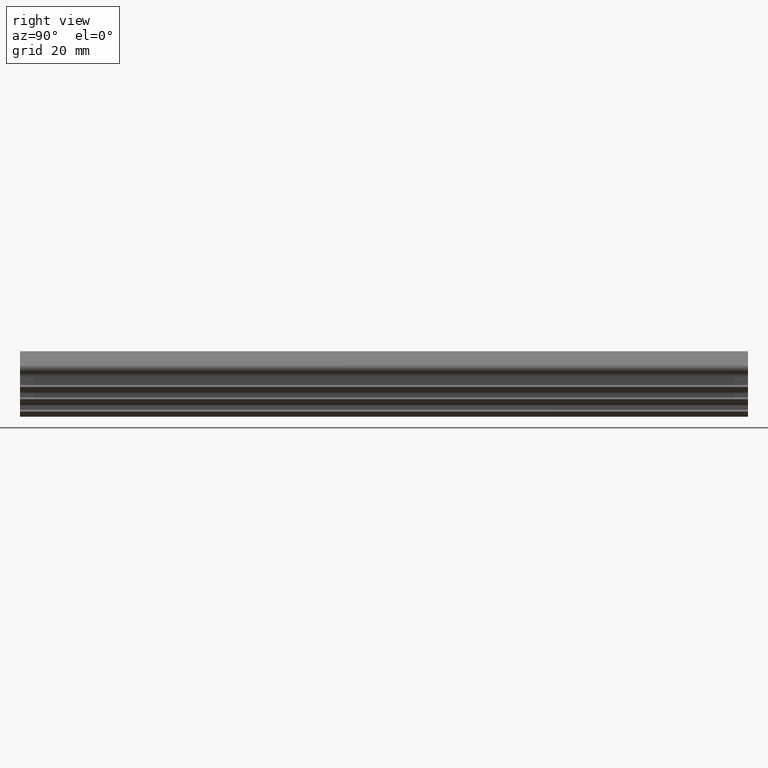
[diagram: clean part render]
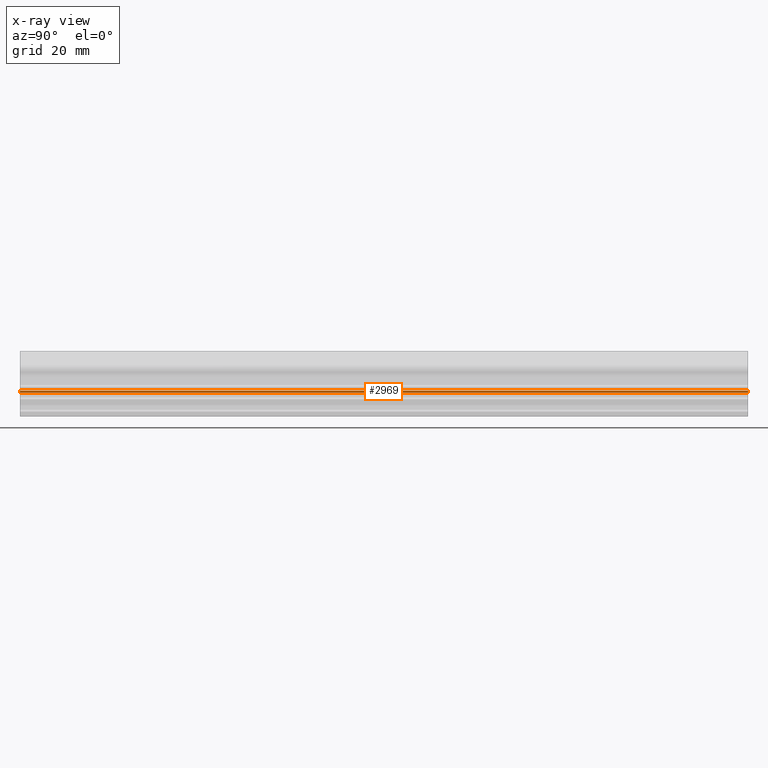
[diagram: x-ray — body ghosted, one internal face saturated and labeled with its STEP entity id]
A machine part, right view, then the same camera in x-ray: the body is ghosted and one INTERNAL B-rep face — a face not visible from any outside direction — is saturated and labeled: STEP entity #2969.
In plain terms, the highlighted face is a freeform B-spline surface patch.
Its self-contained STEP definition (entity closure, byte-faithful):
#635=CARTESIAN_POINT('',(0.650000030873351,0.0,6.600000313483170));
#636=VERTEX_POINT('',#635);
#701=CARTESIAN_POINT('',(1.150000054622070,0.0,7.100000337231870));
#702=VERTEX_POINT('',#701);
#708=CARTESIAN_POINT('',(0.650000030873351,0.0,6.600000313483170));
#709=CARTESIAN_POINT('',(1.150000054622063,0.0,6.600000313483162));
#710=CARTESIAN_POINT('',(1.150000054622070,0.0,7.100000337231870));
#718=(BOUNDED_CURVE()B_SPLINE_CURVE(2,(#708,#709,#710),.UNSPECIFIED.,.F.,.U.)CURVE()GEOMETRIC_REPRESENTATION_ITEM()QUASI_UNIFORM_CURVE()RATIONAL_B_SPLINE_CURVE((1.0,0.707106781186547,1.0))REPRESENTATION_ITEM(''));
#719=EDGE_CURVE('',#636,#702,#718,.T.);
#1405=CARTESIAN_POINT('',(0.650000030873351,200.0,6.600000313483170));
#1406=VERTEX_POINT('',#1405);
#1412=CARTESIAN_POINT('',(1.150000054622070,200.0,7.100000337231870));
#1413=VERTEX_POINT('',#1412);
#1414=CARTESIAN_POINT('',(0.650000030873336,200.0,6.600000313483162));
#1415=CARTESIAN_POINT('',(1.150000054622063,200.000000000000030,6.600000313483162));
#1416=CARTESIAN_POINT('',(1.150000054622063,200.0,7.100000337231889));
#1424=(BOUNDED_CURVE()B_SPLINE_CURVE(2,(#1414,#1415,#1416),.UNSPECIFIED.,.F.,.U.)CURVE()GEOMETRIC_REPRESENTATION_ITEM()QUASI_UNIFORM_CURVE()RATIONAL_B_SPLINE_CURVE((1.0,0.707106781186547,1.0))REPRESENTATION_ITEM(''));
#1425=EDGE_CURVE('',#1406,#1413,#1424,.T.);
#2937=CARTESIAN_POINT('',(1.150000054622070,200.0,7.100000337231870));
#2938=CARTESIAN_POINT('',(1.150000054622070,0.0,7.100000337231870));
#2939=QUASI_UNIFORM_CURVE('',1,(#2937,#2938),.UNSPECIFIED.,.F.,.U.);
#2940=EDGE_CURVE('',#1413,#702,#2939,.T.);
#2945=CARTESIAN_POINT('',(1.149828717101703,205.0,7.113088812007510));
#2946=CARTESIAN_POINT('',(1.149828717101703,-5.125000000000000,7.113088812007510));
#2947=CARTESIAN_POINT('',(1.164246185446194,205.000000000000030,6.562507908968406));
#2948=CARTESIAN_POINT('',(1.164246185446194,-5.125000000000001,6.562507908968406));
#2949=CARTESIAN_POINT('',(0.614839989175303,205.0,6.601238074007694));
#2950=CARTESIAN_POINT('',(0.614839989175303,-5.125000000000001,6.601238074007694));
#2958=(BOUNDED_SURFACE()B_SPLINE_SURFACE(1,2,((#2945,#2947,#2949),(#2946,#2948,#2950)),.UNSPECIFIED.,.F.,.F.,.U.)B_SPLINE_SURFACE_WITH_KNOTS((2,2),(3,3),(0.0,210.125000000000000),(0.0,0.994518635311443),.UNSPECIFIED.)GEOMETRIC_REPRESENTATION_ITEM()RATIONAL_B_SPLINE_SURFACE(((1.0,0.670944222169687,0.996392650557671),(1.0,0.670944222169687,0.996392650557671)))REPRESENTATION_ITEM('')SURFACE());
#2959=ORIENTED_EDGE('',*,*,#719,.T.);
#2960=ORIENTED_EDGE('',*,*,#2940,.F.);
#2961=ORIENTED_EDGE('',*,*,#1425,.F.);
#2962=CARTESIAN_POINT('',(0.650000030873351,200.0,6.600000313483170));
#2963=CARTESIAN_POINT('',(0.650000030873351,0.0,6.600000313483170));
#2964=QUASI_UNIFORM_CURVE('',1,(#2962,#2963),.UNSPECIFIED.,.F.,.U.);
#2965=EDGE_CURVE('',#1406,#636,#2964,.T.);
#2966=ORIENTED_EDGE('',*,*,#2965,.T.);
#2967=EDGE_LOOP('',(#2959,#2960,#2961,#2966));
#2968=FACE_OUTER_BOUND('',#2967,.T.);
#2969=ADVANCED_FACE('',(#2968),#2958,.F.);